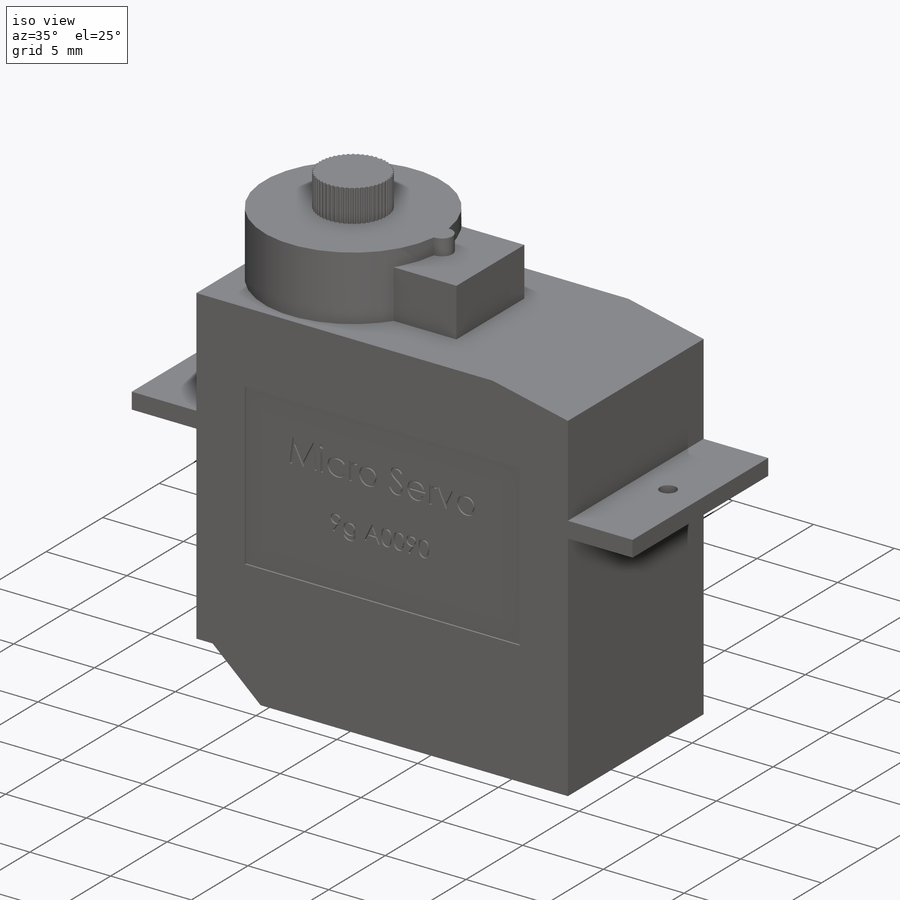
[diagram: iso view]
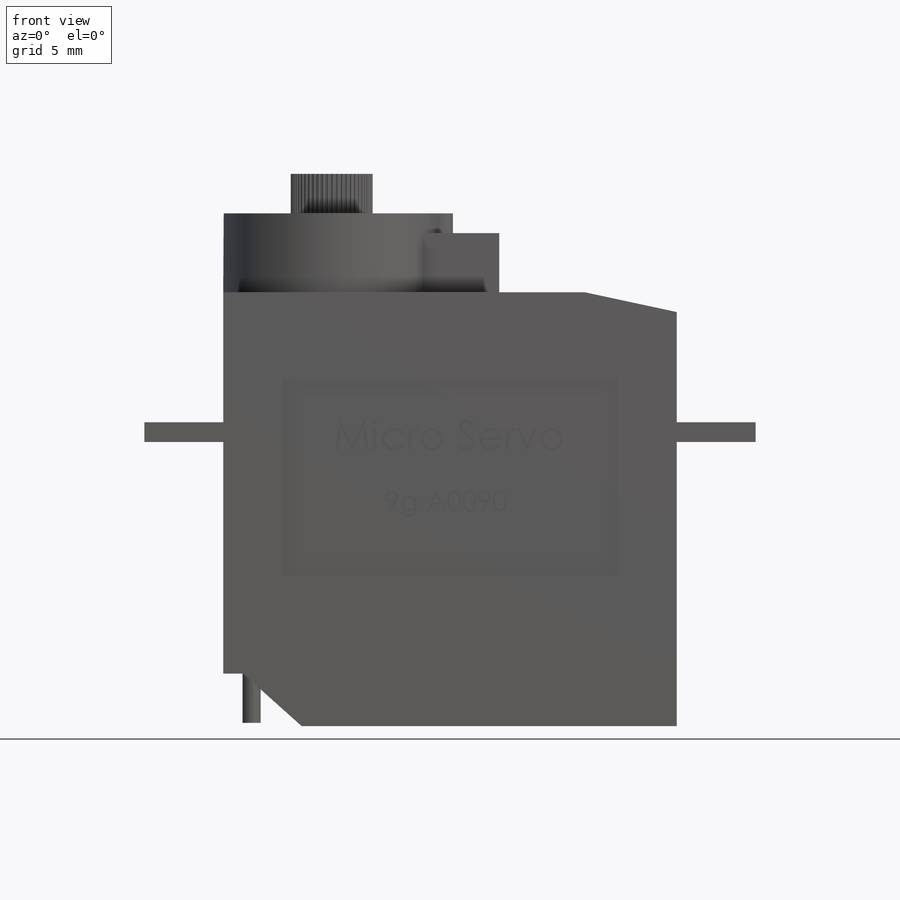
[diagram: front view]
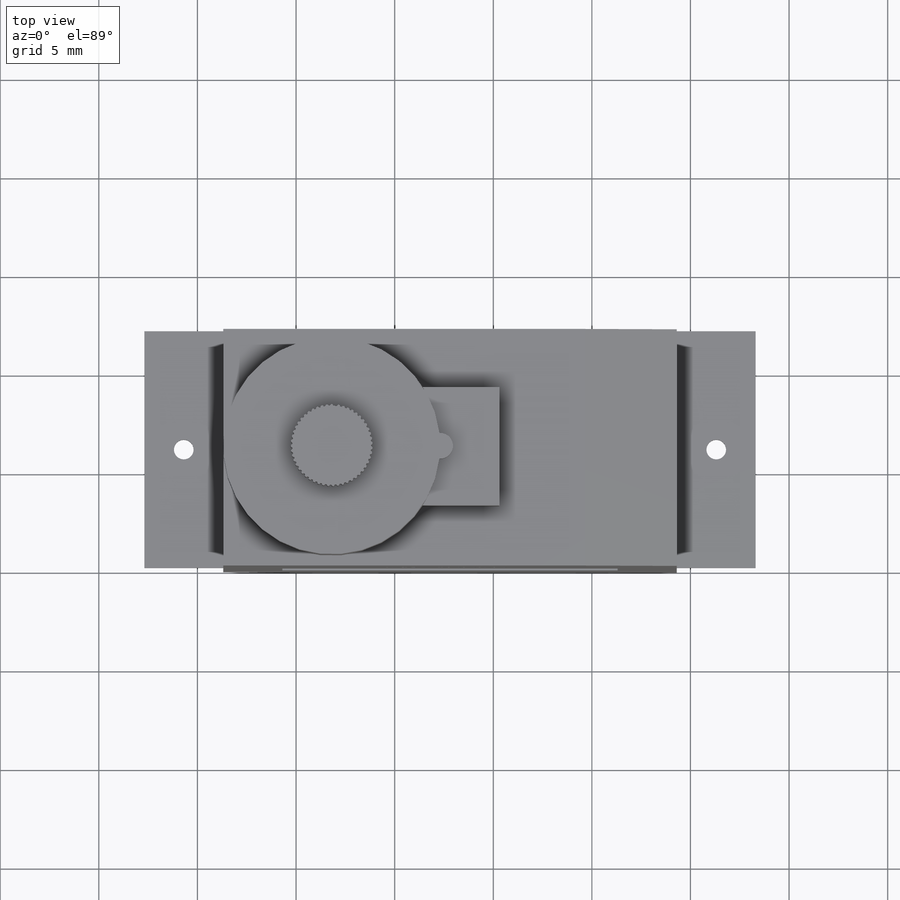
[diagram: top view]
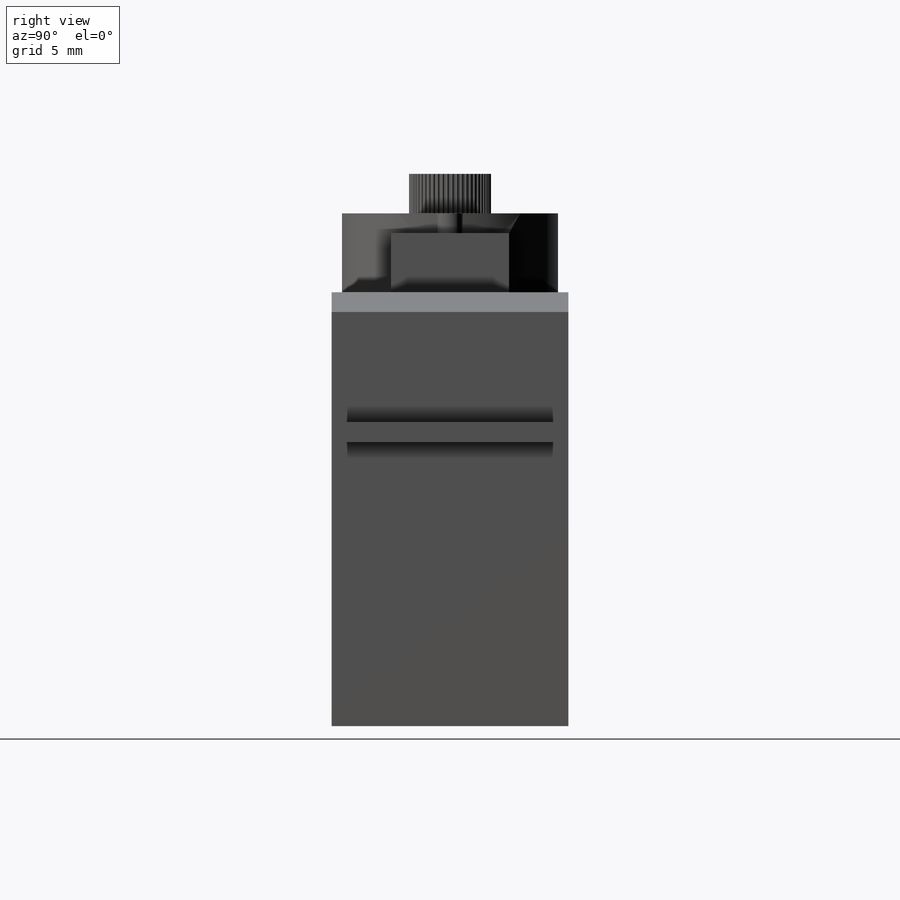
[diagram: right view]
SOLIDWORKS PART (.sldprt)
format: sldprt  version: not decoded by parser v0  size: 684,032 bytes
history: native  units: mm
features: sketch x10, extrude x5, cut_extrude x5, material x1, pattern_circular x1 (+11 scaffold rows collapsed)
feature tree (33):
  scaffold x11  (default folders/planes/origin — collapsed)
  material  "Material <not specified>"
  sketch  "Sketch1"  dims[c1.D1=23.0mm c1.D2=22.0mm c1.D3=7.0mm c1.D4=4.0mm c1.D5=1.0mm c2.D3=4.0mm c2.D6=1.0mm]
  extrude  "Boss-Extrude1"  Depth=12mm
  sketch  "Sketch2"  dims[D1=3.0mm D2=3.0mm D3=3.0mm]
  extrude  "Boss-Extrude3"  Depth=4mm
  sketch  "Sketch3"  dims[D1=0.0mm]
  cut_extrude  "Cut-Extrude1"  Depth=1mm
  sketch  "Sketch4"  dims[D1=4.0mm]
  extrude  "Boss-Extrude4"  Depth=2mm
  sketch  "Sketch5"  dims[D1=0.0mm]
  extrude  "Boss-Extrude6"  Depth=2mm
  pattern_circular  "CirPattern1"  Count=51 Angle=7deg
  sketch  "Sketch6"  dims[D1=1.0mm D2=1.0mm]
  cut_extrude  "Cut-Extrude2"  [1 undecoded]
  sketch  "Sketch8"  dims[D1=3.0mm D2=3.0mm]
  cut_extrude  "Cut-Extrude5"  Depth=2mm
  sketch  "Sketch9"
  extrude  "Boss-Extrude8"  Depth=4.5mm
  sketch  "Sketch10"  dims[D1=3.0mm D2=3.0mm]
  cut_extrude  "Cut-Extrude6"  Depth=0.1mm
  sketch  "Sketch11"
  cut_extrude  "Cut-Extrude7"  Depth=0.1mm
decode coverage: 18 of 21 modeling features carry decoded parameters
note: 1 parameter value undecoded
note: suppression state not decoded; provenance and decode notes live in map.json
